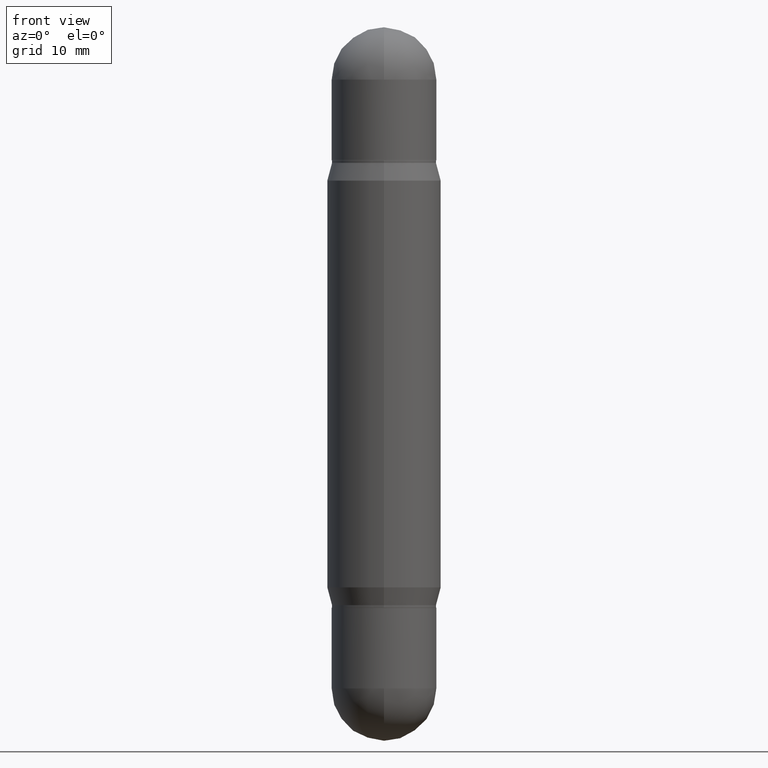
[diagram: clean part render]
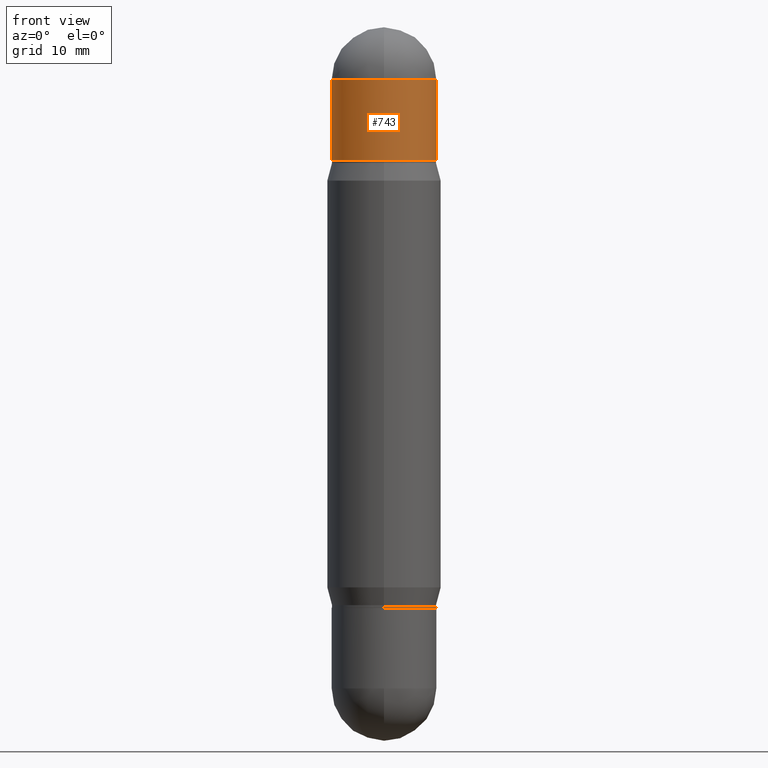
[diagram: same view with one face highlighted and labeled with its STEP entity id]
A machine part, front view. The second image highlights one B-rep face of the part: STEP entity #743.
In plain terms, the highlighted cylindrical surface (partial cylindrical patch) has radius 5.5004 mm, axis along (-0, -0, -1).
Its self-contained STEP definition (entity closure, byte-faithful):
#40 = DIRECTION ( 'NONE',  ( 2.445468806185136597E-29, 3.479614466977828254E-15, 1.000000000000000000 ) ) ;
#43 = VERTEX_POINT ( 'NONE', #833 ) ;
#81 = CIRCLE ( 'NONE', #335, 0.2165500000000001035 ) ;
#100 = CARTESIAN_POINT ( 'NONE',  ( 0.2165500000000001035, -1.180428641556704882E-14, -2.952799999999999869 ) ) ;
#108 = VERTEX_POINT ( 'NONE', #858 ) ;
#120 = CYLINDRICAL_SURFACE ( 'NONE', #767, 0.2165500000000001035 ) ;
#186 = LINE ( 'NONE', #100, #731 ) ;
#234 = LINE ( 'NONE', #414, #519 ) ;
#304 = EDGE_CURVE ( 'NONE', #108, #43, #748, .T. ) ;
#308 = DIRECTION ( 'NONE',  ( 1.000000000000000000, -6.982962677686266711E-15, 0.000000000000000000 ) ) ;
#335 = AXIS2_PLACEMENT_3D ( 'NONE', #420, #764, #337 ) ;
#337 = DIRECTION ( 'NONE',  ( 1.000000000000000000, -6.982962677686265922E-15, 0.000000000000000000 ) ) ;
#362 = DIRECTION ( 'NONE',  ( -2.445468806185136877E-29, -3.479614466977828648E-15, -1.000000000000000000 ) ) ;
#384 = DIRECTION ( 'NONE',  ( 1.000000000000000000, -6.982962677686270655E-15, 0.000000000000000000 ) ) ;
#391 = VERTEX_POINT ( 'NONE', #738 ) ;
#412 = ORIENTED_EDGE ( 'NONE', *, *, #926, .T. ) ;
#414 = CARTESIAN_POINT ( 'NONE',  ( -0.2165500000000001035, -8.806485006296660292E-15, -2.952799999999999869 ) ) ;
#420 = CARTESIAN_POINT ( 'NONE',  ( 6.691414020924079206E-29, -7.710307624460063053E-16, -0.2165500000000001868 ) ) ;
#431 = CARTESIAN_POINT ( 'NONE',  ( -0.2165500000000001035, 1.323835882843576813E-16, -0.2165500000000001868 ) ) ;
#445 = AXIS2_PLACEMENT_3D ( 'NONE', #1015, #678, #1005 ) ;
#466 = DIRECTION ( 'NONE',  ( -2.445468806185136597E-29, -3.479614466977828254E-15, -1.000000000000000000 ) ) ;
#519 = VECTOR ( 'NONE', #916, 39.37007874015748143 ) ;
#542 = EDGE_CURVE ( 'NONE', #778, #391, #81, .T. ) ;
#558 = CARTESIAN_POINT ( 'NONE',  ( -1.485640841417359468E-15, -0.2165500000000009917, -0.2165499999999994374 ) ) ;
#636 = FACE_OUTER_BOUND ( 'NONE', #681, .T. ) ;
#678 = DIRECTION ( 'NONE',  ( 2.445468806185136597E-29, 3.479614466977828254E-15, 1.000000000000000000 ) ) ;
#681 = EDGE_LOOP ( 'NONE', ( #739, #412, #911, #1063, #915 ) ) ;
#729 = CARTESIAN_POINT ( 'NONE',  ( 0.000000000000000000, -1.029212584771408642E-14, -2.952799999999999869 ) ) ;
#731 = VECTOR ( 'NONE', #362, 39.37007874015748143 ) ;
#738 = CARTESIAN_POINT ( 'NONE',  ( 0.2165500000000001035, -2.865417820986029909E-15, -0.2165500000000001868 ) ) ;
#739 = ORIENTED_EDGE ( 'NONE', *, *, #924, .F. ) ;
#743 = ADVANCED_FACE ( 'NONE', ( #636 ), #120, .T. ) ;
#748 = CIRCLE ( 'NONE', #800, 0.2165500000000000758 ) ;
#764 = DIRECTION ( 'NONE',  ( 2.445468806185136597E-29, 3.479614466977828254E-15, 1.000000000000000000 ) ) ;
#767 = AXIS2_PLACEMENT_3D ( 'NONE', #729, #466, #384 ) ;
#778 = VERTEX_POINT ( 'NONE', #558 ) ;
#800 = AXIS2_PLACEMENT_3D ( 'NONE', #978, #40, #308 ) ;
#833 = CARTESIAN_POINT ( 'NONE',  ( 0.2165500000000000758, -3.447644311673096437E-15, -0.5512000000000001343 ) ) ;
#839 = CIRCLE ( 'NONE', #445, 0.2165500000000001035 ) ;
#858 = CARTESIAN_POINT ( 'NONE',  ( -0.2165500000000000758, 1.323835882843561036E-16, -0.5512000000000001343 ) ) ;
#911 = ORIENTED_EDGE ( 'NONE', *, *, #304, .T. ) ;
#915 = ORIENTED_EDGE ( 'NONE', *, *, #542, .F. ) ;
#916 = DIRECTION ( 'NONE',  ( -2.445468806185136877E-29, -3.479614466977828648E-15, -1.000000000000000000 ) ) ;
#924 = EDGE_CURVE ( 'NONE', #1088, #778, #839, .T. ) ;
#926 = EDGE_CURVE ( 'NONE', #1088, #108, #234, .T. ) ;
#978 = CARTESIAN_POINT ( 'NONE',  ( 5.873037884934223228E-29, -1.935483743820134825E-15, -0.5512000000000001343 ) ) ;
#1005 = DIRECTION ( 'NONE',  ( 1.000000000000000000, -6.982962677686265922E-15, 0.000000000000000000 ) ) ;
#1015 = CARTESIAN_POINT ( 'NONE',  ( 6.691414020924079206E-29, -7.710307624460063053E-16, -0.2165500000000001868 ) ) ;
#1058 = EDGE_CURVE ( 'NONE', #391, #43, #186, .T. ) ;
#1063 = ORIENTED_EDGE ( 'NONE', *, *, #1058, .F. ) ;
#1088 = VERTEX_POINT ( 'NONE', #431 ) ;